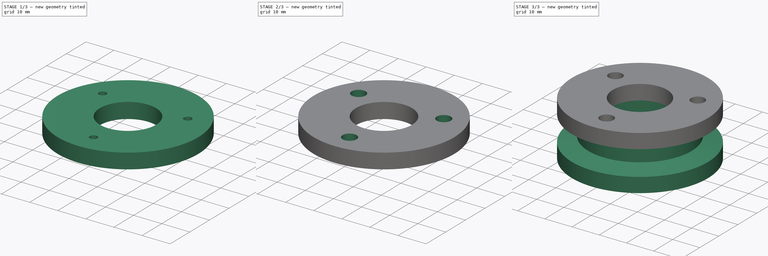
[diagram: build sequence overview — one tinted view per stage of 3, left to right]
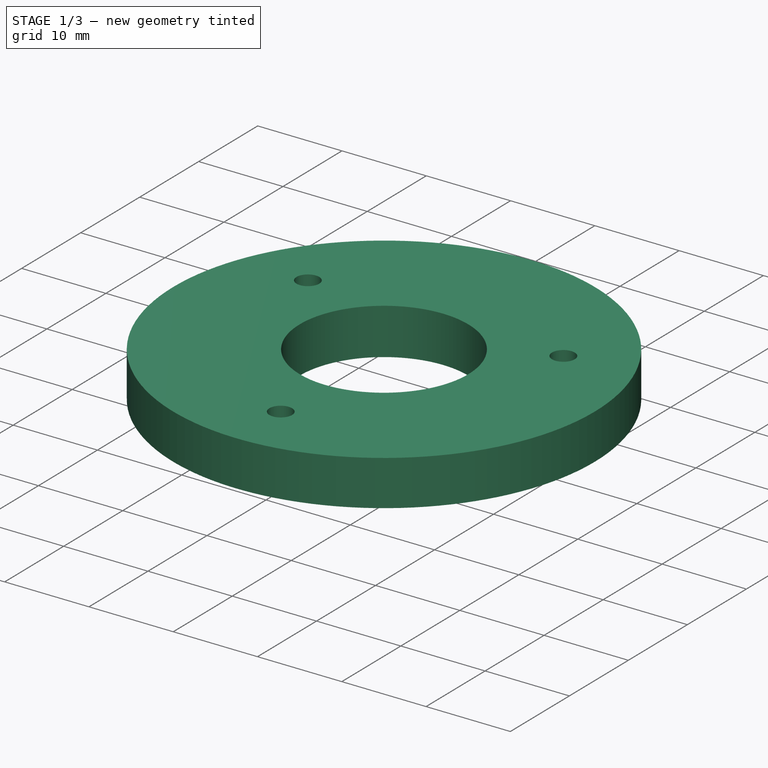
[diagram: stage 1 of 3 — iso view after this stage's code; geometry added in this stage tinted green]
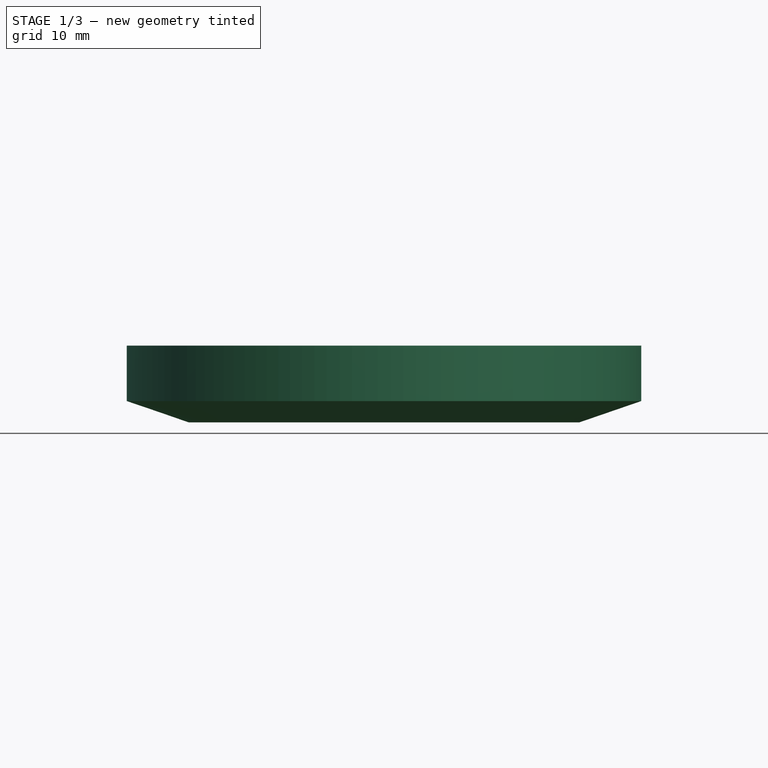
[diagram: stage 1 of 3 — front view after this stage's code; geometry added in this stage tinted green]
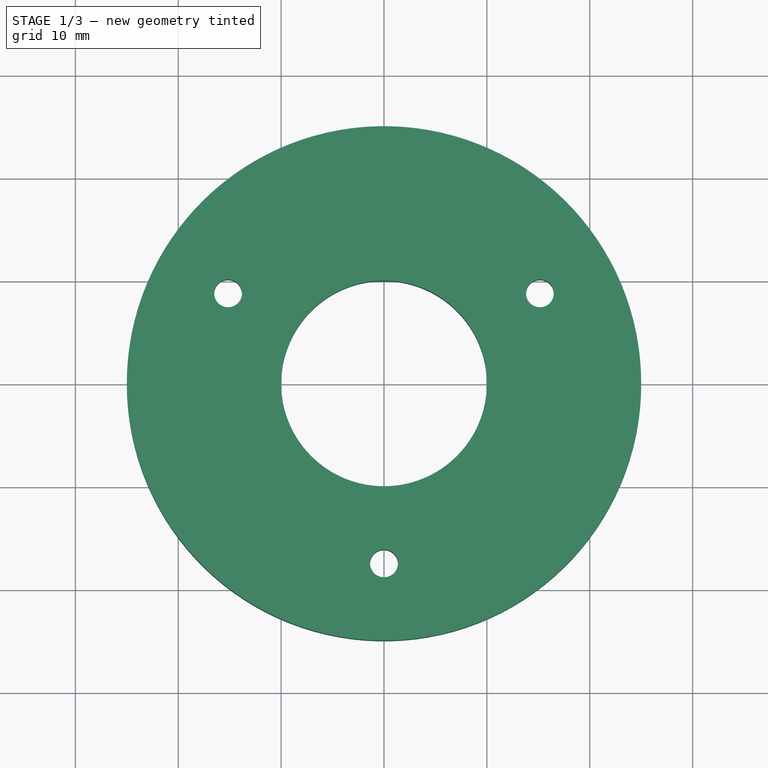
[diagram: stage 1 of 3 — top view after this stage's code; geometry added in this stage tinted green]
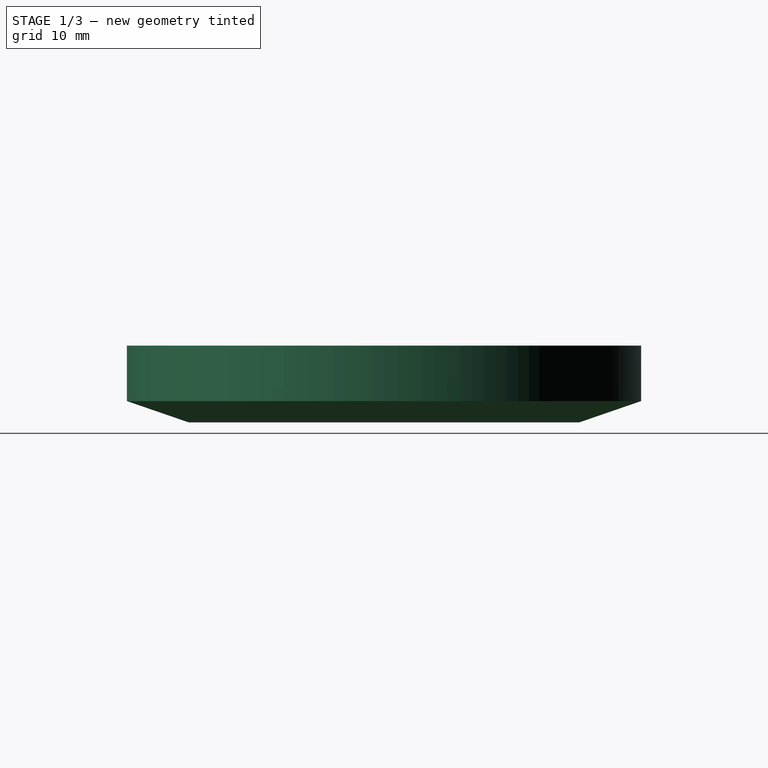
[diagram: stage 1 of 3 — right view after this stage's code; geometry added in this stage tinted green]
FCSTD DOCUMENT  (FreeCAD 0.15R4503 (Git))
Label: V_Belt_Pulley
License: CC-BY 3.0
LicenseURL: http://creativecommons.org/licenses/by/3.0/
objects: Sketcher::SketchObject×5, PartDesign::Pocket×3, PartDesign::Revolution×2, App::DocumentObjectGroup×2
note: 15 computed .brp shape members not serialized (recipe doc carries the construction recipe); baked Part::Feature solids carry a one-line shape summary decoded from their .brp

FEATURE [Sketcher::SketchObject] Sketch  label="1_FrontBase_Sketch"
  Placement = pos=(0,0,0) rot=(1,0,0;1.5708rad)
  sketch-geometry (10):
    g0: LineSegment StartX=13.75 StartY=-10 StartZ=0 EndX=25 EndY=-10 EndZ=0
    g1: LineSegment StartX=25 StartY=-10 StartZ=0 EndX=25 EndY=-4.61597 EndZ=0
    g2: LineSegment StartX=25 StartY=-4.61597 StartZ=0 EndX=19 EndY=-2.55 EndZ=0
    g3: LineSegment StartX=14.25 StartY=-4.5 StartZ=0 EndX=14.25 EndY=-9 EndZ=0
    g4: LineSegment StartX=14.25 StartY=-9 StartZ=0 EndX=13.75 EndY=-9 EndZ=0
    g5: LineSegment StartX=13.75 StartY=-9 StartZ=0 EndX=13.75 EndY=-10 EndZ=0
    g6: LineSegment StartX=19 StartY=4.5 StartZ=0 EndX=19 EndY=-2.55 EndZ=0
    g7: LineSegment StartX=14.25 StartY=-4.5 StartZ=0 EndX=16 EndY=-4.5 EndZ=0
    g8: LineSegment StartX=16 StartY=-4.5 StartZ=0 EndX=16 EndY=4.5 EndZ=0
    g9: LineSegment StartX=16 StartY=4.5 StartZ=0 EndX=19 EndY=4.5 EndZ=0
  constraints (30):
    c: Horizontal(g0)
    c: Coincident(g0,g1)
    c: Vertical(g1)
    c: Coincident(g1,g2)
    c: Coincident(g3,g4)
    c: Coincident(g4,g5)
    c: Coincident(g5,g0)
    c: Horizontal(g4)
    c: Vertical(g3)
    c: Vertical(g5)
    c: DistanceY(g5) = -1
    c: DistanceY(g3,g0) = -5.5
    c: DistanceX(g-1,g0) = 13.75
    c: DistanceX(g-1,g3) = 14.25
    c: Coincident(g6,g2)
    c: Vertical(g6)
    c: DistanceX(g-1,g0) = 25
    c: Coincident(g3,g7)
    c: Coincident(g7,g8)
    c: Vertical(g8)
    c: Coincident(g8,g9)
    c: Coincident(g9,g6)
    c: Horizontal(g9)
    c: DistanceY(g-1,g8) = 4.5
    c: DistanceX(g-1,g8) = 16
    c: Horizontal(g7)
    c: DistanceY(g-1,g0) = -10
    c: DistanceY(g-1,g2) = -2.55
    c: Angle(g2,g0) = 0.331613
    c: DistanceX(g-1,g6) = 19
FEATURE [Sketcher::SketchObject] Sketch001  label="1_BackBase_Sketch"
  Placement = pos=(0,0,0) rot=(1,0,0;1.5708rad)
  sketch-geometry (6):
    g0: LineSegment StartX=19 StartY=2.55 StartZ=0 EndX=25 EndY=4.61597 EndZ=0
    g1: LineSegment StartX=25 StartY=4.61597 StartZ=0 EndX=25 EndY=10 EndZ=0
    g2: LineSegment StartX=25 StartY=10 StartZ=0 EndX=10 EndY=10 EndZ=0
    g3: LineSegment StartX=10 StartY=10 StartZ=0 EndX=10 EndY=4.5 EndZ=0
    g4: LineSegment StartX=10 StartY=4.5 StartZ=0 EndX=19 EndY=4.5 EndZ=0
    g5: LineSegment StartX=19 StartY=4.5 StartZ=0 EndX=19 EndY=2.55 EndZ=0
  constraints (18):
    c: Coincident(g0,g1)
    c: Coincident(g1,g2)
    c: Horizontal(g2)
    c: Vertical(g1)
    c: DistanceX(g-1,g1) = 25
    c: DistanceY(g-1,g0) = 2.55
    c: DistanceY(g-1,g1) = 10
    c: Coincident(g2,g3)
    c: Vertical(g3)
    c: Coincident(g3,g4)
    c: Horizontal(g4)
    c: DistanceY(g3,g2) = 5.5
    c: DistanceX(g-1,g3) = 10
    c: Coincident(g5,g4)
    c: Coincident(g5,g0)
    c: Vertical(g5)
    c: DistanceX(g-1,g4) = 19
    c: Angle(g0,g-1) = 2.80998
FEATURE [PartDesign::Revolution] Revolution  label="1_BackBase_Revolution"
  Angle = 360
  Axis = (0,0,1)
  Base = (0,0,0)
  Placement = pos=(0,0,0) rot=(1,0,0;1.5708rad)
  ReferenceAxis = -> Sketch001 [V_Axis]
  Reversed = true
  Sketch = -> Sketch001
FEATURE [App::DocumentObjectGroup] Group  label="Front"
  Group = -> [Revolution001,Pocket001]
FEATURE [Sketcher::SketchObject] Sketch004  label="2_ScrewThroughHoles_Sketch"
  Placement = pos=(0,0,10) rot=(0,0,1;3.14159rad)
  Support = -> Revolution [Face3]
  sketch-geometry (7):
    g0: LineSegment [constr] StartX=15.1554 StartY=-8.75 StartZ=0 EndX=3e-12 EndY=17.5 EndZ=0
    g1: LineSegment [constr] StartX=3e-12 StartY=17.5 StartZ=0 EndX=-15.1554 EndY=-8.75 EndZ=0
    g2: LineSegment [constr] StartX=-15.1554 StartY=-8.75 StartZ=0 EndX=15.1554 EndY=-8.75 EndZ=0
    g3: Circle [constr] CenterX=0 CenterY=0 CenterZ=0 NormalX=0 NormalY=0 NormalZ=1 Radius=17.5
    g4: Circle CenterX=3e-12 CenterY=17.5 CenterZ=0 NormalX=0 NormalY=0 NormalZ=1 Radius=1.35
    g5: Circle CenterX=-15.1554 CenterY=-8.75 CenterZ=0 NormalX=0 NormalY=0 NormalZ=1 Radius=1.35
    g6: Circle CenterX=15.1554 CenterY=-8.75 CenterZ=0 NormalX=0 NormalY=0 NormalZ=1 Radius=1.35
  constraints (18):
    c: Coincident(g0,g1)
    c: Coincident(g1,g2)
    c: Coincident(g2,g0)
    c: Equal(g0,g1)
    c: Equal(g0,g2)
    c: PointOnObject(g0,g3)
    c: PointOnObject(g1,g3)
    c: PointOnObject(g2,g3)
    c: Coincident(g0,g-1)
    c: Radius(g3) = 17.5
    c: Coincident(g3,g-1)
    c: Horizontal(g2)
    c: Coincident(g4,g0)
    c: Coincident(g5,g1)
    c: Coincident(g6,g0)
    c: Radius(g6) = 1.35
    c: Equal(g6,g5)
    c: Equal(g6,g4)
FEATURE [PartDesign::Pocket] Pocket  label="2_ScrewThroughHoles_Pocket"
  Length = 5
  Placement = pos=(0,0,0) rot=(1,0,0;1.5708rad)
  Sketch = -> Sketch004
  Type = 1
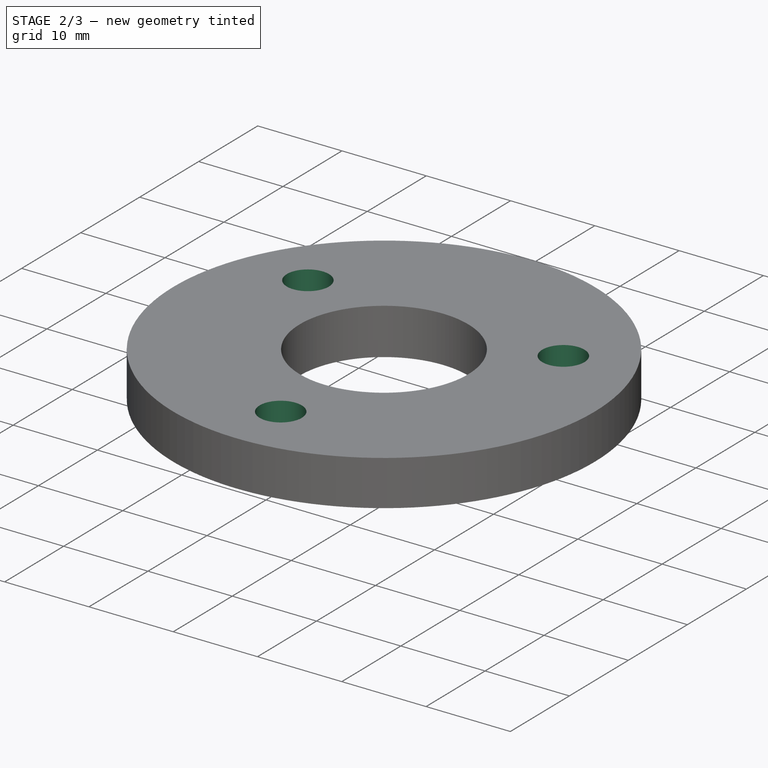
[diagram: stage 2 of 3 — iso view after this stage's code; geometry added in this stage tinted green]
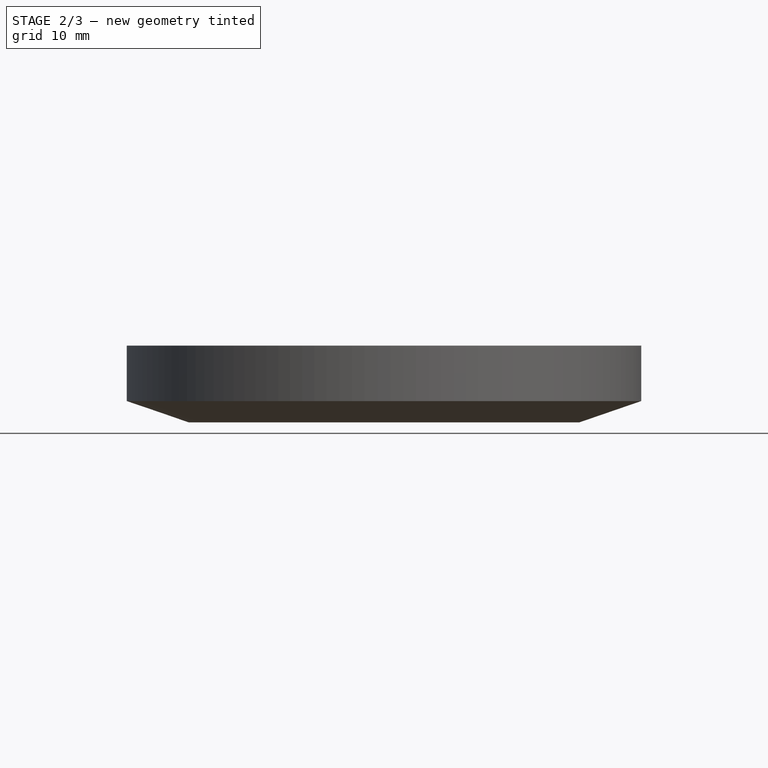
[diagram: stage 2 of 3 — front view after this stage's code; geometry added in this stage tinted green]
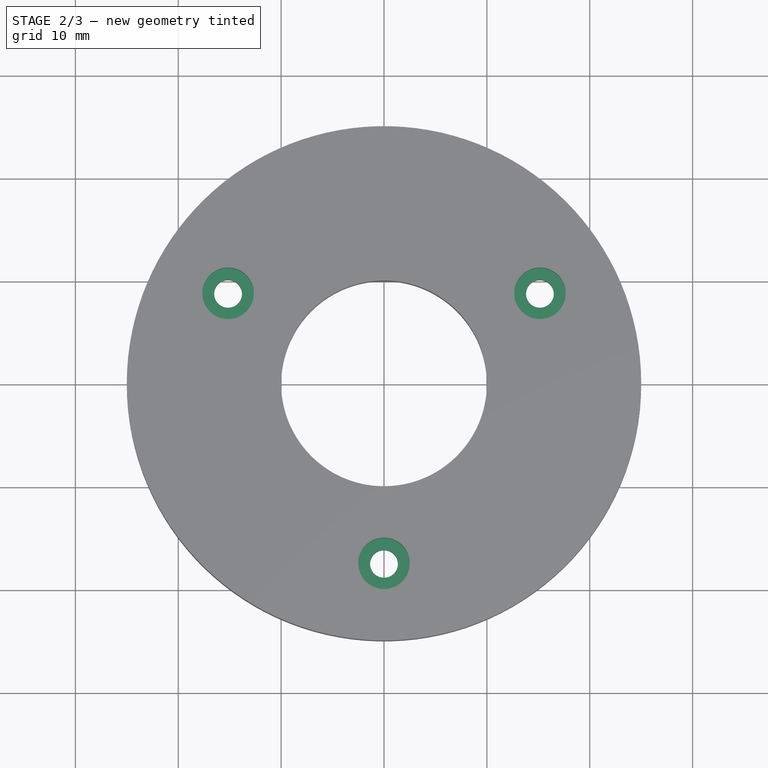
[diagram: stage 2 of 3 — top view after this stage's code; geometry added in this stage tinted green]
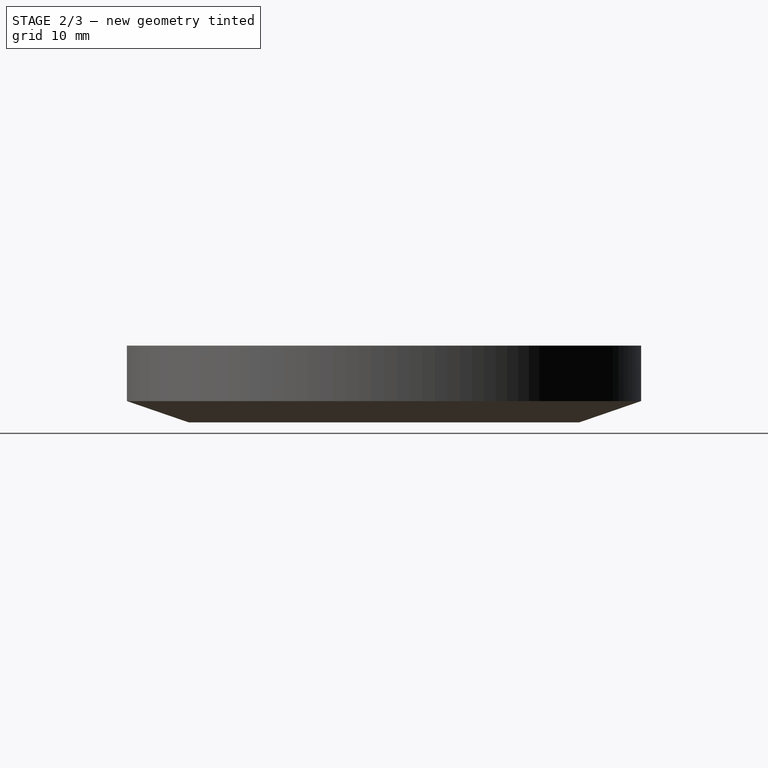
[diagram: stage 2 of 3 — right view after this stage's code; geometry added in this stage tinted green]
FEATURE [Sketcher::SketchObject] Sketch005  label="3_ScrewCounterboreHoles_Sketch"
  ExternalGeometry = -> [Pocket]
  Placement = pos=(0,0,10) rot=(0,0,1;3.14159rad)
  Support = -> Pocket [Face5]
  sketch-geometry (3):
    g0: Circle CenterX=0 CenterY=17.5 CenterZ=0 NormalX=0 NormalY=0 NormalZ=1 Radius=2.5
    g1: Circle CenterX=-15.1554 CenterY=-8.75 CenterZ=0 NormalX=0 NormalY=0 NormalZ=1 Radius=2.5
    g2: Circle CenterX=15.1554 CenterY=-8.75 CenterZ=0 NormalX=0 NormalY=0 NormalZ=1 Radius=2.5
  constraints (6):
    c: Radius(g2) = 2.5
    c: Equal(g2,g1)
    c: Equal(g2,g0)
    c: Coincident(g1,g-4)
    c: Coincident(g0,g-3)
    c: Coincident(g2,g-5)
FEATURE [PartDesign::Pocket] Pocket002  label="3_ScrewCounterboreHoles_Pocket"
  Length = 2.5
  Placement = pos=(0,0,0) rot=(1,0,0;1.5708rad)
  Sketch = -> Sketch005
  Type = 0
FEATURE [App::DocumentObjectGroup] Group001  label="Back"
  Group = -> [Revolution,Pocket,Pocket002]
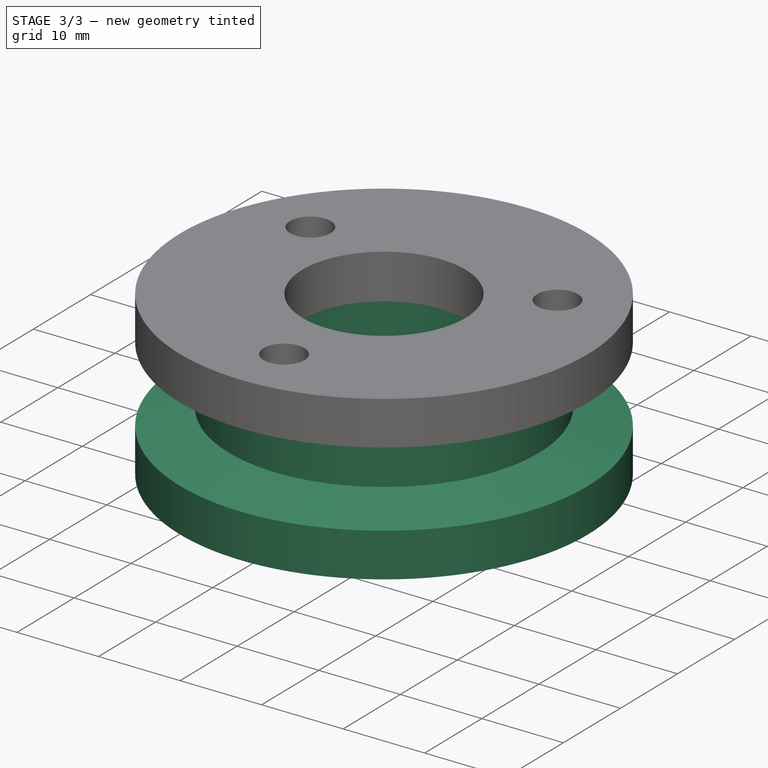
[diagram: stage 3 of 3 — iso view after this stage's code; geometry added in this stage tinted green]
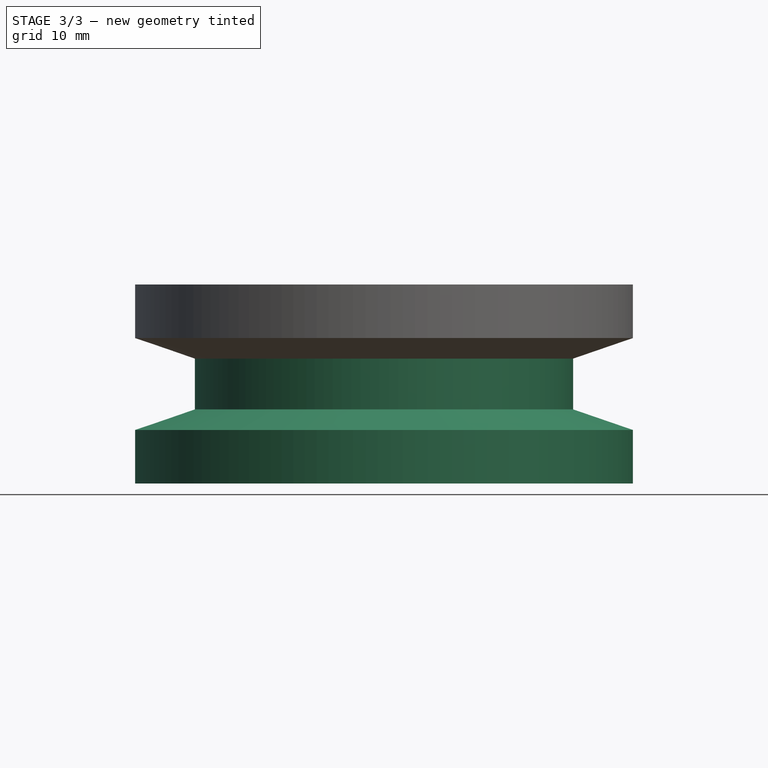
[diagram: stage 3 of 3 — front view after this stage's code; geometry added in this stage tinted green]
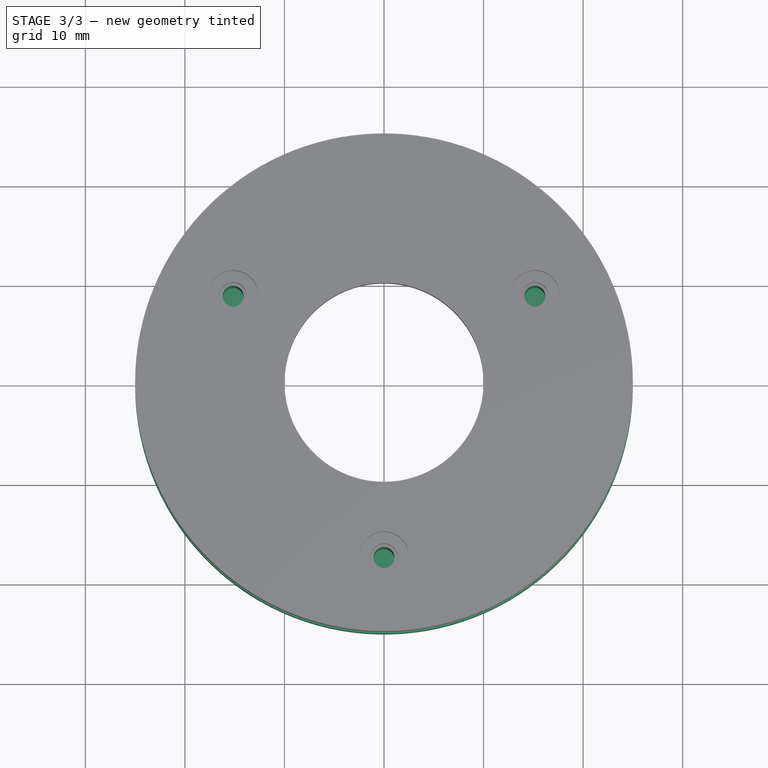
[diagram: stage 3 of 3 — top view after this stage's code; geometry added in this stage tinted green]
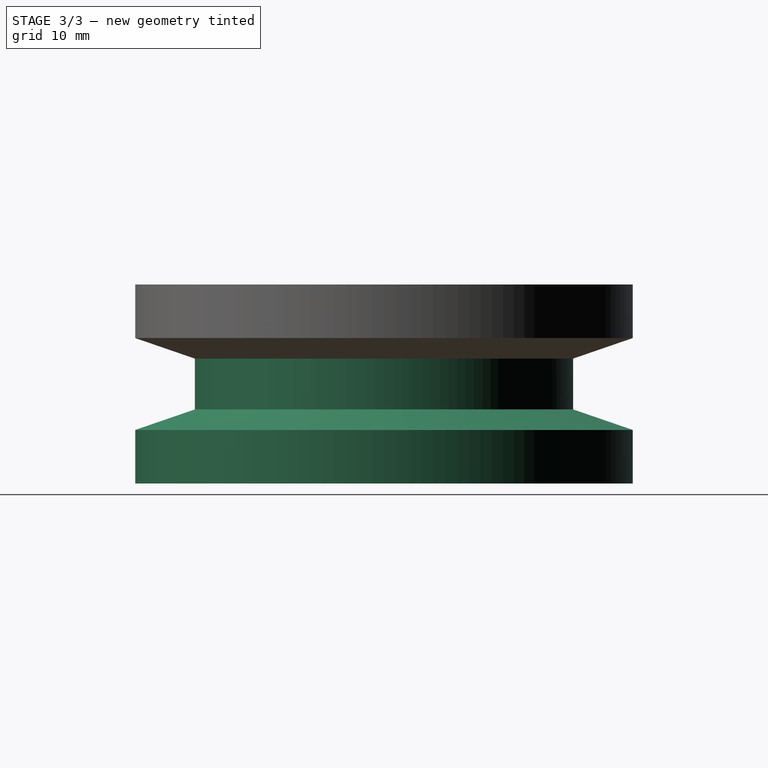
[diagram: stage 3 of 3 — right view after this stage's code; geometry added in this stage tinted green]
FEATURE [PartDesign::Revolution] Revolution001  label="1_FrontBase_Revolution"
  Angle = 360
  Axis = (0,0,1)
  Base = (0,0,0)
  Placement = pos=(0,0,0) rot=(1,0,0;1.5708rad)
  ReferenceAxis = -> Sketch [V_Axis]
  Reversed = true
  Sketch = -> Sketch
FEATURE [Sketcher::SketchObject] Sketch003  label="2_ScrewHoles_Sketch"
  Placement = pos=(0,0,4.5) rot=(0,0,1;3.14159rad)
  Support = -> Revolution001 [Face8]
  sketch-geometry (7):
    g0: LineSegment [constr] StartX=15.1554 StartY=-8.75 StartZ=0 EndX=0 EndY=17.5 EndZ=0
    g1: LineSegment [constr] StartX=0 StartY=17.5 StartZ=0 EndX=-15.1554 EndY=-8.75 EndZ=0
    g2: LineSegment [constr] StartX=-15.1554 StartY=-8.75 StartZ=0 EndX=15.1554 EndY=-8.75 EndZ=0
    g3: Circle [constr] CenterX=0 CenterY=0 CenterZ=0 NormalX=0 NormalY=0 NormalZ=1 Radius=17.5
    g4: Circle CenterX=0 CenterY=17.5 CenterZ=0 NormalX=0 NormalY=0 NormalZ=1 Radius=1.05
    g5: Circle CenterX=-15.1554 CenterY=-8.75 CenterZ=0 NormalX=0 NormalY=0 NormalZ=1 Radius=1.05
    g6: Circle CenterX=15.1554 CenterY=-8.75 CenterZ=0 NormalX=0 NormalY=0 NormalZ=1 Radius=1.05
  constraints (18):
    c: Coincident(g0,g1)
    c: Coincident(g1,g2)
    c: Coincident(g2,g0)
    c: Equal(g0,g1)
    c: Equal(g0,g2)
    c: PointOnObject(g0,g3)
    c: PointOnObject(g1,g3)
    c: PointOnObject(g2,g3)
    c: Coincident(g0,g-1)
    c: Horizontal(g2)
    c: Coincident(g4,g0)
    c: Coincident(g5,g1)
    c: Coincident(g6,g0)
    c: Radius(g5) = 1.05
    c: Equal(g5,g6)
    c: Equal(g5,g4)
    c: Coincident(g3,g-1)
    c: Radius(g3) = 17.5
FEATURE [PartDesign::Pocket] Pocket001  label="2_ScrewHoles_Pocket"
  Length = 13.5
  Placement = pos=(0,0,0) rot=(1,0,0;1.5708rad)
  Sketch = -> Sketch003
  Type = 0
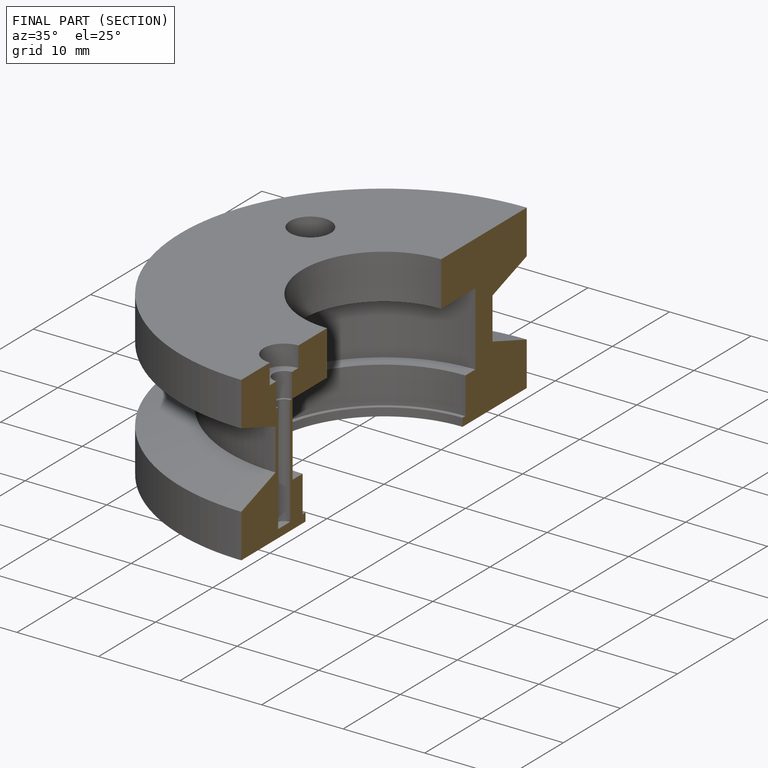
[diagram: finished part — half-section view (interior)]
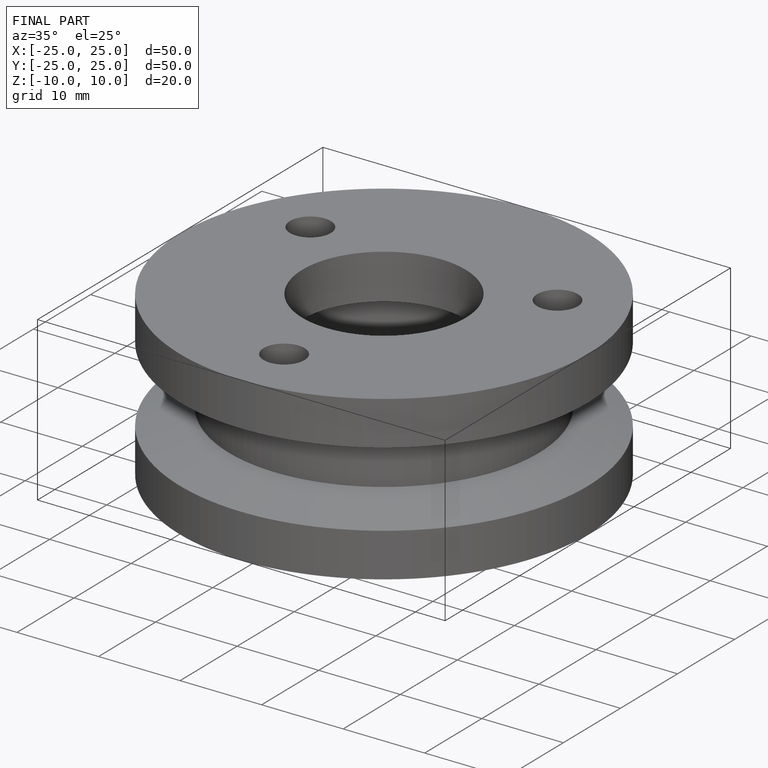
[diagram: finished part — iso view with bounding-box wireframe]
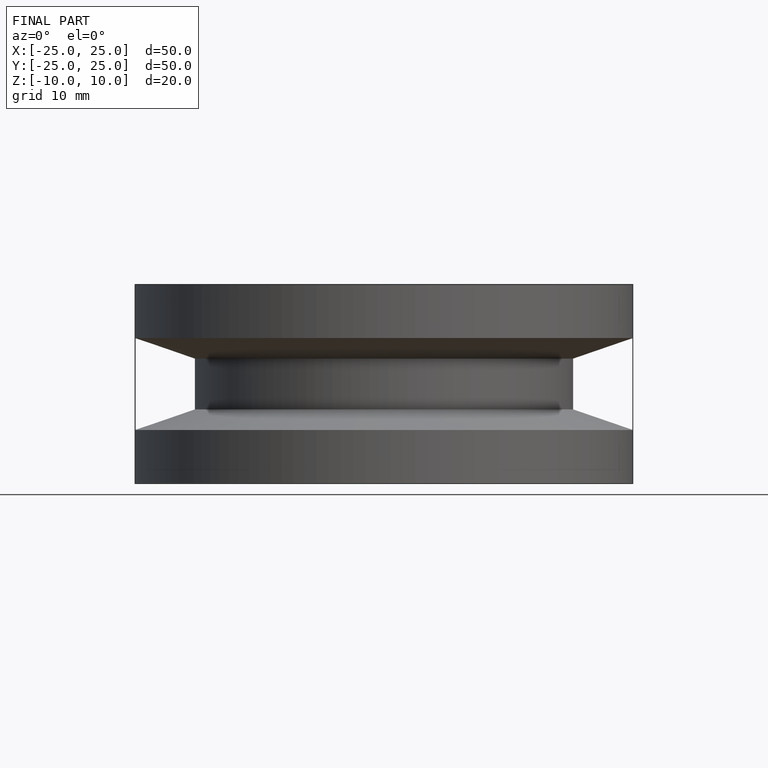
[diagram: finished part — front view with bounding-box wireframe]
